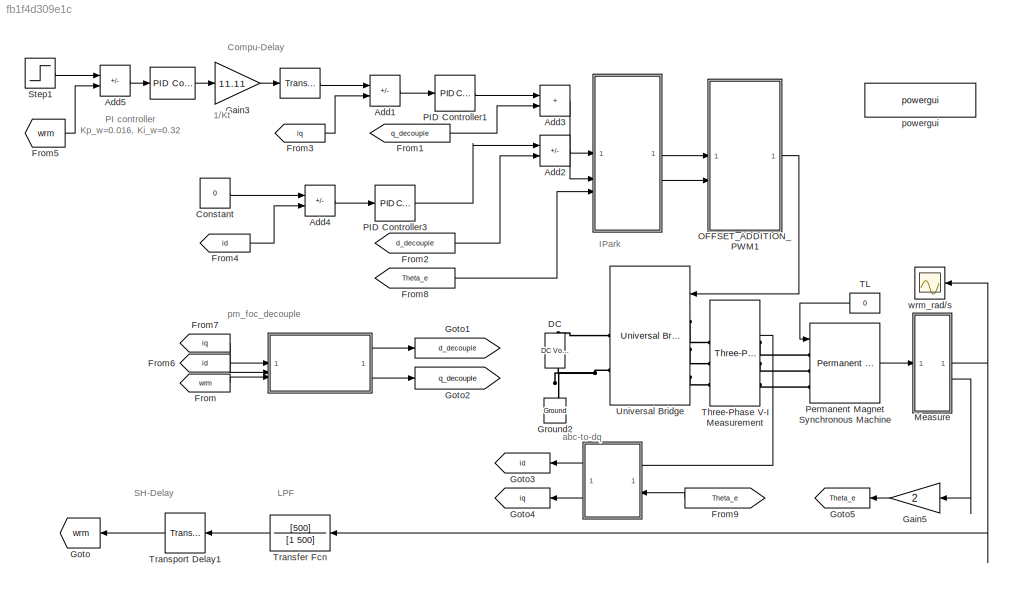
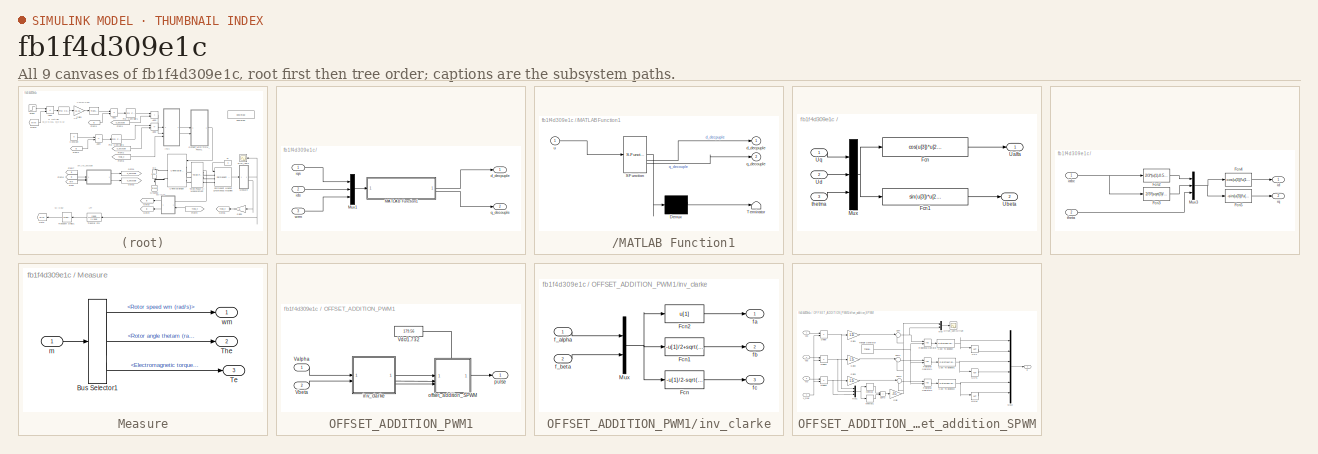
[diagram: thumbnail index - all 9 canvases of the model, root first then tree order]
MODEL slx_fb1f4d309e1c
KIND model
CONFIG AbsTol = auto
CONFIG EnableMultiTasking = on
CONFIG FixedStep = 1e-6
CONFIG MaxStep = auto
CONFIG MinStep = auto
CONFIG RelTol = 1e-3
CONFIG SampleTimeConstraint = Unconstrained
CONFIG SolverName = ode3
CONFIG StartTime = 0.0
CONFIG StopTime = 0.2
BLOCK [TransportDelay]   
  DelayTime = 1/4000
BLOCK [Reference]      REF=slpidlib/PID Controller
  LibrarySourceBlock = simulink/Continuous/PID Controller
  NameLocation = top
  SourceBlock = slpidlib/PID Controller
  SourceType = PID 1dof
BLOCK [SubSystem]     
BLOCK [SubSystem]      
BLOCK [SubSystem]       
  NameLocation = top
BLOCK [Fcn]       /Fcn2
  Expr = 2/3*(u(1)-0.5*u(2)-0.5*u(3))
BLOCK [Fcn]       /Fcn3
  Expr = 2/3*(sqrt(3)/2*u(2)-sqrt(3)/2*u(3))
BLOCK [Fcn]       /Fcn4
  Expr = cos(u(3))*u(1)+sin(u(3))*u(2)
BLOCK [Fcn]       /Fcn5
  Expr = -sin(u(3))*u(1)+cos(u(3))*u(2)
BLOCK [Mux]       /Mux3
  DisplayOption = bar
  Inputs = 3
BLOCK [Inport]       /iabc
BLOCK [Outport]       /id
BLOCK [Outport]       /iq
  Port = 2
BLOCK [Inport]       /theta
  Port = 2
BLOCK [Fcn]      /Fcn
  Expr = cos(u[3])*u[2]-sin(u[3])*u[1]
BLOCK [Fcn]      /Fcn1
  Expr = sin(u[3])*u[2]+cos(u[3])*u[1]
BLOCK [Mux]      /Mux
  DisplayOption = bar
  Inputs = 3
BLOCK [Outport]      /Ualfa
BLOCK [Outport]      /Ubeta
  Port = 2
BLOCK [Inport]      /Ud
  Port = 2
BLOCK [Inport]      /Uq
BLOCK [Inport]      /thetma
  Port = 3
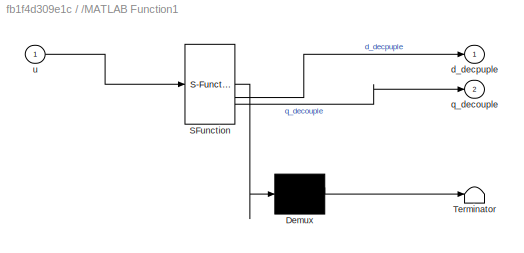
BLOCK [SubSystem]     /MATLAB Function1
  ErrorFcn = Stateflow.Translate.translate
  LibrarySourceBlock = simulink/User-Defined\nFunctions/MATLAB Function
  PermitHierarchicalResolution = ExplicitOnly
  SFBlockType = MATLAB Function
  TreatAsAtomicUnit = on
BLOCK [Demux]     /MATLAB Function1/ Demux 
  Outputs = 1
BLOCK [S-Function]     /MATLAB Function1/ SFunction 
  EnableBusSupport = on
  FunctionName = sf_sfun
  PortCounts = [1 3]
  SFcnIsStateOwnerBlock = off
  SFunctionDeploymentMode = off
  Tag = Stateflow S-Function 1
BLOCK [Terminator]     /MATLAB Function1/ Terminator 
BLOCK [Outport]     /MATLAB Function1/d_decpuple
BLOCK [Outport]     /MATLAB Function1/q_decouple
  Port = 2
BLOCK [Inport]     /MATLAB Function1/u
BLOCK [Mux]     /Mux1
  DisplayOption = bar
  Inputs = 3
BLOCK [Outport]     /d_decpuple
BLOCK [Inport]     /ids
  Port = 2
BLOCK [Inport]     /iqs
BLOCK [Outport]     /q_decouple
  Port = 2
BLOCK [Inport]     /wrm
  Port = 3
BLOCK [Sum] Add1
  IconShape = rectangular
  Inputs = +-
BLOCK [Sum] Add2
  IconShape = rectangular
  Inputs = +-
BLOCK [Sum] Add3
  IconShape = rectangular
BLOCK [Sum] Add4
  IconShape = rectangular
  Inputs = +-
BLOCK [Sum] Add5
  IconShape = rectangular
  Inputs = +-
BLOCK [Constant] Constant
  Value = 0
BLOCK [Reference] DC   REF=spsDCVoltageSourceLib/DC Voltage Source
  NameLocation = right
  SourceBlock = spsDCVoltageSourceLib/DC Voltage Source
  SourceType = DC Voltage Source
BLOCK [From] From
  GotoTag = wrm
BLOCK [From] From1
  GotoTag = q_decouple
BLOCK [From] From2
  GotoTag = d_decouple
BLOCK [From] From3
  GotoTag = iq
BLOCK [From] From4
  GotoTag = id
BLOCK [From] From5
  GotoTag = wrm
BLOCK [From] From6
  GotoTag = id
BLOCK [From] From7
  GotoTag = iq
BLOCK [From] From8
  GotoTag = Theta_e
BLOCK [From] From9
  GotoTag = Theta_e
  NameLocation = top
BLOCK [Gain] Gain3
  Gain = 11.11
BLOCK [Gain] Gain5
  Gain = 2
BLOCK [Goto] Goto
  GotoTag = wrm
  NameLocation = top
BLOCK [Goto] Goto1
  GotoTag = d_decouple
BLOCK [Goto] Goto2
  GotoTag = q_decouple
BLOCK [Goto] Goto3
  GotoTag = id
  NameLocation = top
BLOCK [Goto] Goto4
  GotoTag = iq
  NameLocation = top
BLOCK [Goto] Goto5
  GotoTag = Theta_e
  NameLocation = top
BLOCK [Reference] Ground2  REF=spsGroundLib/Ground
  NameLocation = right
  SourceBlock = spsGroundLib/Ground
  SourceType = Ground
BLOCK [SubSystem] Measure
BLOCK [BusSelector] Measure/Bus Selector1
  OutputSignals = Rotor speed wm (rad/s),Rotor angle thetam (rad),Electromagnetic torque Te (N*m)
BLOCK [Outport] Measure/Te
  Port = 3
BLOCK [Outport] Measure/The
  Port = 2
BLOCK [Inport] Measure/m
BLOCK [Outport] Measure/wm
BLOCK [SubSystem] OFFSET_ADDITION_PWM1
  NameLocation = top
BLOCK [Inport] OFFSET_ADDITION_PWM1/Valpha
BLOCK [Inport] OFFSET_ADDITION_PWM1/Vbeta
  Port = 2
BLOCK [Constant] OFFSET_ADDITION_PWM1/Vdc//1.732
  Value = 179.56
BLOCK [SubSystem] OFFSET_ADDITION_PWM1/inv_clarke
BLOCK [Fcn] OFFSET_ADDITION_PWM1/inv_clarke/Fcn
  Expr = -u[1]/2-sqrt(3)*u[2]/2
BLOCK [Fcn] OFFSET_ADDITION_PWM1/inv_clarke/Fcn1
  Expr = -u[1]/2+sqrt(3)*u[2]/2
BLOCK [Fcn] OFFSET_ADDITION_PWM1/inv_clarke/Fcn2
  Expr = u[1]
BLOCK [Mux] OFFSET_ADDITION_PWM1/inv_clarke/Mux
  DisplayOption = bar
  Inputs = 2
BLOCK [Inport] OFFSET_ADDITION_PWM1/inv_clarke/f_alpha
BLOCK [Inport] OFFSET_ADDITION_PWM1/inv_clarke/f_beta
  Port = 2
BLOCK [Outport] OFFSET_ADDITION_PWM1/inv_clarke/fa
BLOCK [Outport] OFFSET_ADDITION_PWM1/inv_clarke/fb
  Port = 2
BLOCK [Outport] OFFSET_ADDITION_PWM1/inv_clarke/fc
  Port = 3
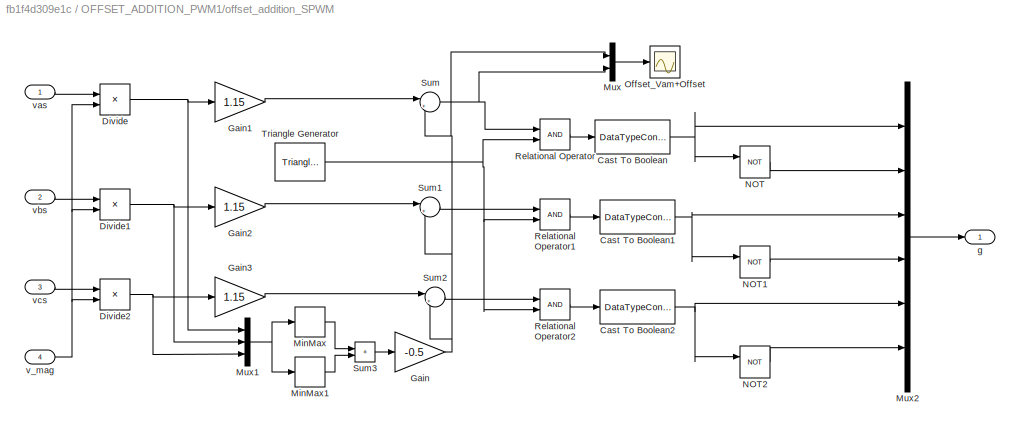
BLOCK [SubSystem] OFFSET_ADDITION_PWM1/offset_addition_SPWM
  PortSchema = {"entries":[{"content":{"sides":[{"content":{"connectorIds":["In1","In2","In3"]},"type":"ConnectorPlacement.EquallySpacedRectSide","uuid":"bd7bea3a-7add-49ec-8b52-f68dbb33beea"},{"content":{"connectorIds":["Out1"],"side":"RIGHT"},"type":"ConnectorPlacement.EquallySpacedRectSide","uuid":"aa5e81bc-27af-49d7-8d73-7e78ac021e04"},{"content":{"connectorIds":["In4"],"side":"TOP"},"type":"ConnectorPlaceme...<+257ch>
BLOCK [DataTypeConversion] OFFSET_ADDITION_PWM1/offset_addition_SPWM/Cast To Boolean
  OutDataTypeStr = boolean
  RndMeth = Floor
  SaturateOnIntegerOverflow = off
BLOCK [DataTypeConversion] OFFSET_ADDITION_PWM1/offset_addition_SPWM/Cast To Boolean1
  OutDataTypeStr = boolean
  RndMeth = Floor
  SaturateOnIntegerOverflow = off
BLOCK [DataTypeConversion] OFFSET_ADDITION_PWM1/offset_addition_SPWM/Cast To Boolean2
  OutDataTypeStr = boolean
  RndMeth = Floor
  SaturateOnIntegerOverflow = off
BLOCK [Product] OFFSET_ADDITION_PWM1/offset_addition_SPWM/Divide
  Inputs = */
BLOCK [Product] OFFSET_ADDITION_PWM1/offset_addition_SPWM/Divide1
  Inputs = */
BLOCK [Product] OFFSET_ADDITION_PWM1/offset_addition_SPWM/Divide2
  Inputs = */
BLOCK [Gain] OFFSET_ADDITION_PWM1/offset_addition_SPWM/Gain
  Gain = -0.5
BLOCK [Gain] OFFSET_ADDITION_PWM1/offset_addition_SPWM/Gain1
  Gain = 1.15
BLOCK [Gain] OFFSET_ADDITION_PWM1/offset_addition_SPWM/Gain2
  Gain = 1.15
BLOCK [Gain] OFFSET_ADDITION_PWM1/offset_addition_SPWM/Gain3
  Gain = 1.15
BLOCK [MinMax] OFFSET_ADDITION_PWM1/offset_addition_SPWM/MinMax
  Function = max
BLOCK [MinMax] OFFSET_ADDITION_PWM1/offset_addition_SPWM/MinMax1
BLOCK [Mux] OFFSET_ADDITION_PWM1/offset_addition_SPWM/Mux
  DisplayOption = bar
  Inputs = 2
BLOCK [Mux] OFFSET_ADDITION_PWM1/offset_addition_SPWM/Mux1
  DisplayOption = bar
  Inputs = 3
BLOCK [Mux] OFFSET_ADDITION_PWM1/offset_addition_SPWM/Mux2
  DisplayOption = bar
  Inputs = 6
BLOCK [Logic] OFFSET_ADDITION_PWM1/offset_addition_SPWM/NOT
  AllPortsSameDT = off
  IconShape = distinctive
  Operator = NOT
  OutDataTypeStr = boolean
BLOCK [Logic] OFFSET_ADDITION_PWM1/offset_addition_SPWM/NOT1
  AllPortsSameDT = off
  IconShape = distinctive
  Operator = NOT
  OutDataTypeStr = boolean
BLOCK [Logic] OFFSET_ADDITION_PWM1/offset_addition_SPWM/NOT2
  AllPortsSameDT = off
  IconShape = distinctive
  Operator = NOT
  OutDataTypeStr = boolean
BLOCK [Scope] OFFSET_ADDITION_PWM1/offset_addition_SPWM/Offset_Vam+Offset
  Floating = off
  NumInputPorts = 1
  ScopeSpecificationString = Simulink.scopes.TimeScopeBlockCfg('CurrentConfiguration', extmgr.ConfigurationSet(extmgr.Configuration('Core','General UI',true,'FigureColor',[1 1 1]),extmgr.Configuration('Core','Source UI',true),extmgr.Configuration('Sources','WiredSimulink',true,'DataLoggingVariableName','ScopeData1'),extmgr.Configuration('Visuals','Time Domain',true,'SerializedDisplays',{struct('MinYLimReal','-1.03834','MaxYLi...<+1562ch>
BLOCK [RelationalOperator] OFFSET_ADDITION_PWM1/offset_addition_SPWM/Relational Operator
  InputSameDT = off
  OutDataTypeStr = boolean
  RndMeth = Simplest
BLOCK [RelationalOperator] OFFSET_ADDITION_PWM1/offset_addition_SPWM/Relational Operator1
  InputSameDT = off
  OutDataTypeStr = boolean
  RndMeth = Simplest
BLOCK [RelationalOperator] OFFSET_ADDITION_PWM1/offset_addition_SPWM/Relational Operator2
  InputSameDT = off
  OutDataTypeStr = boolean
  RndMeth = Simplest
BLOCK [Sum] OFFSET_ADDITION_PWM1/offset_addition_SPWM/Sum
  Inputs = |++
BLOCK [Sum] OFFSET_ADDITION_PWM1/offset_addition_SPWM/Sum1
  Inputs = |++
BLOCK [Sum] OFFSET_ADDITION_PWM1/offset_addition_SPWM/Sum2
  Inputs = |++
BLOCK [Sum] OFFSET_ADDITION_PWM1/offset_addition_SPWM/Sum3
  IconShape = rectangular
BLOCK [Reference] OFFSET_ADDITION_PWM1/offset_addition_SPWM/Triangle Generator  REF=spsTriangleGeneratorLib/Triangle
Generator
  LibrarySourceBlock = sps_lib/Sources/Signal Generator Sources/Triangle\nGenerator
  SourceBlock = spsTriangleGeneratorLib/Triangle\nGenerator
  SourceType = Triangle Generator
BLOCK [Outport] OFFSET_ADDITION_PWM1/offset_addition_SPWM/g
BLOCK [Inport] OFFSET_ADDITION_PWM1/offset_addition_SPWM/v_mag
  Port = 4
BLOCK [Inport] OFFSET_ADDITION_PWM1/offset_addition_SPWM/vas
BLOCK [Inport] OFFSET_ADDITION_PWM1/offset_addition_SPWM/vbs
  Port = 2
BLOCK [Inport] OFFSET_ADDITION_PWM1/offset_addition_SPWM/vcs
  Port = 3
BLOCK [Outport] OFFSET_ADDITION_PWM1/pulse
BLOCK [Reference] PID Controller1  REF=slpidlib/PID Controller
  LibrarySourceBlock = simulink/Continuous/PID Controller
  SourceBlock = slpidlib/PID Controller
  SourceType = PID 1dof
BLOCK [Reference] PID Controller3  REF=slpidlib/PID Controller
  LibrarySourceBlock = simulink/Continuous/PID Controller
  SourceBlock = slpidlib/PID Controller
  SourceType = PID 1dof
BLOCK [Reference] Permanent Magnet Synchronous Machine   REF=spsPermanentMagnetSynchronousMachineLib/Permanent Magnet
Synchronous Machine
  SourceBlock = spsPermanentMagnetSynchronousMachineLib/Permanent Magnet\nSynchronous Machine
  SourceType = Permanent Magnet Synchronous Machine
BLOCK [Step] Step1
  After = 100
  SampleTime = 0
  Time = 0
BLOCK [Constant] TL
  NameLocation = top
  Value = 0
BLOCK [Reference] Three-Phase V-I Measurement  REF=spsThreePhaseVIMeasurementLib/Three-Phase
V-I Measurement
  LibrarySourceBlock = sps_lib/Sensors and Measurements/Three-Phase\nV-I Measurement
  SourceBlock = spsThreePhaseVIMeasurementLib/Three-Phase\nV-I Measurement
  SourceType = Three-Phase VI Measurement
BLOCK [TransferFcn] Transfer Fcn
  Denominator = [1 500]
  NameLocation = top
  Numerator = [500]
BLOCK [TransportDelay] Transport Delay1
  DelayTime = (1/4000)/2
  NameLocation = top
BLOCK [Reference] Universal Bridge   REF=spsUniversalBridgeLib/Universal Bridge
  NameLocation = top
  SourceBlock = spsUniversalBridgeLib/Universal Bridge
  SourceType = Universal Bridge
BLOCK [Reference] powergui  REF=spspowerguiLib/powergui
  Priority = 1
  SourceBlock = spspowerguiLib/powergui
  SourceType = PSB option menu block
BLOCK [Scope] wrm_rad//s
  Floating = off
  NameLocation = top
  NumInputPorts = 1
  ScopeSpecificationString = Simulink.scopes.TimeScopeBlockCfg('CurrentConfiguration', extmgr.ConfigurationSet(extmgr.Configuration('Core','General UI',true,'FigureColor',[1 1 1]),extmgr.Configuration('Core','Source UI',true),extmgr.Configuration('Sources','WiredSimulink',true,'DataLoggingVariableName','ScopeData1'),extmgr.Configuration('Visuals','Time Domain',true,'SerializedDisplays',{struct('MinYLimReal','-15.26281','MaxYL...<+1592ch>
ANNOTATION (root): 1/Kt
ANNOTATION (root): Compu-Delay
ANNOTATION (root): IPark
ANNOTATION (root): LPF
ANNOTATION (root): PI controller Kp_w=0.016, Ki_w=0.32
ANNOTATION (root): SH-Delay
ANNOTATION (root): abc-to-dq
ANNOTATION (root): pm_foc_decouple
LINE       /Fcn2:1 ->       /Mux3:1
LINE       /Fcn3:1 ->       /Mux3:2
LINE       /Fcn4:1 ->       /id:1
LINE       /Fcn5:1 ->       /iq:1
NET       /Mux3:1 ->       /Fcn4:1,       /Fcn5:1
NET       /iabc:1 ->       /Fcn2:1,       /Fcn3:1
LINE       /theta:1 ->       /Mux3:3
LINE       :1 -> Goto3:1
LINE       :2 -> Goto4:1
LINE      /Fcn1:1 ->      /Ubeta:1
LINE      /Fcn:1 ->      /Ualfa:1
NET      /Mux:1 ->      /Fcn1:1,      /Fcn:1
LINE      /Ud:1 ->      /Mux:2
LINE      /Uq:1 ->      /Mux:1
LINE      /thetma:1 ->      /Mux:3
LINE      :1 -> OFFSET_ADDITION_PWM1:1
LINE      :2 -> OFFSET_ADDITION_PWM1:2
LINE     /MATLAB Function1:1 ->     /d_decpuple:1
LINE     /MATLAB Function1:2 ->     /q_decouple:1
LINE     /Mux1:1 ->     /MATLAB Function1:1
LINE     /ids:1 ->     /Mux1:2
LINE     /iqs:1 ->     /Mux1:1
LINE     /wrm:1 ->     /Mux1:3
LINE     :1 -> Goto1:1
LINE     :2 -> Goto2:1
LINE    :1 -> Gain3:1
LINE   :1 -> Add1:1
LINE Add1:1 -> PID Controller1:1
LINE Add2:1 ->      :2
LINE Add3:1 ->      :1
LINE Add4:1 -> PID Controller3:1
LINE Add5:1 ->    :1
LINE Constant:1 -> Add4:1
LINE From1:1 -> Add3:2
LINE From2:1 -> Add2:2
LINE From3:1 -> Add1:2
LINE From4:1 -> Add4:2
LINE From5:1 -> Add5:2
LINE From6:1 ->     :2
LINE From7:1 ->     :1
LINE From8:1 ->      :3
LINE From9:1 ->       :2
LINE From:1 ->     :3
LINE Gain3:1 ->   :1
LINE Gain5:1 -> Goto5:1
LINE Measure/Bus Selector1:1 -> Measure/wm:1
LINE Measure/Bus Selector1:2 -> Measure/The:1
LINE Measure/Bus Selector1:3 -> Measure/Te:1
LINE Measure/m:1 -> Measure/Bus Selector1:1
NET Measure:1 -> Transfer Fcn:1, wrm_rad//s:1
LINE Measure:2 -> Gain5:1
LINE OFFSET_ADDITION_PWM1/Valpha:1 -> OFFSET_ADDITION_PWM1/inv_clarke:1
LINE OFFSET_ADDITION_PWM1/Vbeta:1 -> OFFSET_ADDITION_PWM1/inv_clarke:2
LINE OFFSET_ADDITION_PWM1/Vdc//1.732:1 -> OFFSET_ADDITION_PWM1/offset_addition_SPWM:4
LINE OFFSET_ADDITION_PWM1/inv_clarke/Fcn1:1 -> OFFSET_ADDITION_PWM1/inv_clarke/fb:1
LINE OFFSET_ADDITION_PWM1/inv_clarke/Fcn2:1 -> OFFSET_ADDITION_PWM1/inv_clarke/fa:1
LINE OFFSET_ADDITION_PWM1/inv_clarke/Fcn:1 -> OFFSET_ADDITION_PWM1/inv_clarke/fc:1
NET OFFSET_ADDITION_PWM1/inv_clarke/Mux:1 -> OFFSET_ADDITION_PWM1/inv_clarke/Fcn1:1, OFFSET_ADDITION_PWM1/inv_clarke/Fcn2:1, OFFSET_ADDITION_PWM1/inv_clarke/Fcn:1
LINE OFFSET_ADDITION_PWM1/inv_clarke/f_alpha:1 -> OFFSET_ADDITION_PWM1/inv_clarke/Mux:1
LINE OFFSET_ADDITION_PWM1/inv_clarke/f_beta:1 -> OFFSET_ADDITION_PWM1/inv_clarke/Mux:2
LINE OFFSET_ADDITION_PWM1/inv_clarke:1 -> OFFSET_ADDITION_PWM1/offset_addition_SPWM:1
LINE OFFSET_ADDITION_PWM1/inv_clarke:2 -> OFFSET_ADDITION_PWM1/offset_addition_SPWM:2
LINE OFFSET_ADDITION_PWM1/inv_clarke:3 -> OFFSET_ADDITION_PWM1/offset_addition_SPWM:3
NET OFFSET_ADDITION_PWM1/offset_addition_SPWM/Cast To Boolean1:1 -> OFFSET_ADDITION_PWM1/offset_addition_SPWM/Mux2:3, OFFSET_ADDITION_PWM1/offset_addition_SPWM/NOT1:1
NET OFFSET_ADDITION_PWM1/offset_addition_SPWM/Cast To Boolean2:1 -> OFFSET_ADDITION_PWM1/offset_addition_SPWM/Mux2:5, OFFSET_ADDITION_PWM1/offset_addition_SPWM/NOT2:1
NET OFFSET_ADDITION_PWM1/offset_addition_SPWM/Cast To Boolean:1 -> OFFSET_ADDITION_PWM1/offset_addition_SPWM/Mux2:1, OFFSET_ADDITION_PWM1/offset_addition_SPWM/NOT:1
NET OFFSET_ADDITION_PWM1/offset_addition_SPWM/Divide1:1 -> OFFSET_ADDITION_PWM1/offset_addition_SPWM/Gain2:1, OFFSET_ADDITION_PWM1/offset_addition_SPWM/Mux1:2
NET OFFSET_ADDITION_PWM1/offset_addition_SPWM/Divide2:1 -> OFFSET_ADDITION_PWM1/offset_addition_SPWM/Gain3:1, OFFSET_ADDITION_PWM1/offset_addition_SPWM/Mux1:3
NET OFFSET_ADDITION_PWM1/offset_addition_SPWM/Divide:1 -> OFFSET_ADDITION_PWM1/offset_addition_SPWM/Gain1:1, OFFSET_ADDITION_PWM1/offset_addition_SPWM/Mux1:1
LINE OFFSET_ADDITION_PWM1/offset_addition_SPWM/Gain1:1 -> OFFSET_ADDITION_PWM1/offset_addition_SPWM/Sum:1
LINE OFFSET_ADDITION_PWM1/offset_addition_SPWM/Gain2:1 -> OFFSET_ADDITION_PWM1/offset_addition_SPWM/Sum1:1
LINE OFFSET_ADDITION_PWM1/offset_addition_SPWM/Gain3:1 -> OFFSET_ADDITION_PWM1/offset_addition_SPWM/Sum2:1
NET OFFSET_ADDITION_PWM1/offset_addition_SPWM/Gain:1 -> OFFSET_ADDITION_PWM1/offset_addition_SPWM/Mux:1, OFFSET_ADDITION_PWM1/offset_addition_SPWM/Sum1:2, OFFSET_ADDITION_PWM1/offset_addition_SPWM/Sum2:2, OFFSET_ADDITION_PWM1/offset_addition_SPWM/Sum:2
LINE OFFSET_ADDITION_PWM1/offset_addition_SPWM/MinMax1:1 -> OFFSET_ADDITION_PWM1/offset_addition_SPWM/Sum3:2
LINE OFFSET_ADDITION_PWM1/offset_addition_SPWM/MinMax:1 -> OFFSET_ADDITION_PWM1/offset_addition_SPWM/Sum3:1
NET OFFSET_ADDITION_PWM1/offset_addition_SPWM/Mux1:1 -> OFFSET_ADDITION_PWM1/offset_addition_SPWM/MinMax1:1, OFFSET_ADDITION_PWM1/offset_addition_SPWM/MinMax:1
LINE OFFSET_ADDITION_PWM1/offset_addition_SPWM/Mux2:1 -> OFFSET_ADDITION_PWM1/offset_addition_SPWM/g:1
LINE OFFSET_ADDITION_PWM1/offset_addition_SPWM/Mux:1 -> OFFSET_ADDITION_PWM1/offset_addition_SPWM/Offset_Vam+Offset:1
LINE OFFSET_ADDITION_PWM1/offset_addition_SPWM/NOT1:1 -> OFFSET_ADDITION_PWM1/offset_addition_SPWM/Mux2:4
LINE OFFSET_ADDITION_PWM1/offset_addition_SPWM/NOT2:1 -> OFFSET_ADDITION_PWM1/offset_addition_SPWM/Mux2:6
LINE OFFSET_ADDITION_PWM1/offset_addition_SPWM/NOT:1 -> OFFSET_ADDITION_PWM1/offset_addition_SPWM/Mux2:2
LINE OFFSET_ADDITION_PWM1/offset_addition_SPWM/Relational Operator1:1 -> OFFSET_ADDITION_PWM1/offset_addition_SPWM/Cast To Boolean1:1
LINE OFFSET_ADDITION_PWM1/offset_addition_SPWM/Relational Operator2:1 -> OFFSET_ADDITION_PWM1/offset_addition_SPWM/Cast To Boolean2:1
LINE OFFSET_ADDITION_PWM1/offset_addition_SPWM/Relational Operator:1 -> OFFSET_ADDITION_PWM1/offset_addition_SPWM/Cast To Boolean:1
LINE OFFSET_ADDITION_PWM1/offset_addition_SPWM/Sum1:1 -> OFFSET_ADDITION_PWM1/offset_addition_SPWM/Relational Operator1:1
LINE OFFSET_ADDITION_PWM1/offset_addition_SPWM/Sum2:1 -> OFFSET_ADDITION_PWM1/offset_addition_SPWM/Relational Operator2:1
LINE OFFSET_ADDITION_PWM1/offset_addition_SPWM/Sum3:1 -> OFFSET_ADDITION_PWM1/offset_addition_SPWM/Gain:1
NET OFFSET_ADDITION_PWM1/offset_addition_SPWM/Sum:1 -> OFFSET_ADDITION_PWM1/offset_addition_SPWM/Mux:2, OFFSET_ADDITION_PWM1/offset_addition_SPWM/Relational Operator:1
NET OFFSET_ADDITION_PWM1/offset_addition_SPWM/Triangle Generator:1 -> OFFSET_ADDITION_PWM1/offset_addition_SPWM/Relational Operator1:2, OFFSET_ADDITION_PWM1/offset_addition_SPWM/Relational Operator2:2, OFFSET_ADDITION_PWM1/offset_addition_SPWM/Relational Operator:2
NET OFFSET_ADDITION_PWM1/offset_addition_SPWM/v_mag:1 -> OFFSET_ADDITION_PWM1/offset_addition_SPWM/Divide1:2, OFFSET_ADDITION_PWM1/offset_addition_SPWM/Divide2:2, OFFSET_ADDITION_PWM1/offset_addition_SPWM/Divide:2
LINE OFFSET_ADDITION_PWM1/offset_addition_SPWM/vas:1 -> OFFSET_ADDITION_PWM1/offset_addition_SPWM/Divide:1
LINE OFFSET_ADDITION_PWM1/offset_addition_SPWM/vbs:1 -> OFFSET_ADDITION_PWM1/offset_addition_SPWM/Divide1:1
LINE OFFSET_ADDITION_PWM1/offset_addition_SPWM/vcs:1 -> OFFSET_ADDITION_PWM1/offset_addition_SPWM/Divide2:1
LINE OFFSET_ADDITION_PWM1/offset_addition_SPWM:1 -> OFFSET_ADDITION_PWM1/pulse:1
LINE OFFSET_ADDITION_PWM1:1 -> Universal Bridge :1
LINE PID Controller1:1 -> Add3:1
LINE PID Controller3:1 -> Add2:1
LINE Permanent Magnet Synchronous Machine :1 -> Measure:1
LINE Step1:1 -> Add5:1
LINE TL:1 -> Permanent Magnet Synchronous Machine :1
LINE Three-Phase V-I Measurement:2 ->       :1
LINE Transfer Fcn:1 -> Transport Delay1:1
LINE Transport Delay1:1 -> Goto:1
PNET net1: DC :LConn1 -- Ground2:LConn1 -- Universal Bridge :RConn2
PLINE DC :RConn1 -- Universal Bridge :RConn1
PLINE Permanent Magnet Synchronous Machine :LConn1 -- Three-Phase V-I Measurement:RConn1
PLINE Permanent Magnet Synchronous Machine :LConn2 -- Three-Phase V-I Measurement:RConn2
PLINE Permanent Magnet Synchronous Machine :LConn3 -- Three-Phase V-I Measurement:RConn3
PLINE Three-Phase V-I Measurement:LConn1 -- Universal Bridge :LConn1
PLINE Three-Phase V-I Measurement:LConn2 -- Universal Bridge :LConn2
PLINE Three-Phase V-I Measurement:LConn3 -- Universal Bridge :LConn3
note: NET lines group one-source signal fan-out (src -> all destinations, sorted); 1:1 wires keep LINE; PNET lines group multi-terminal physical nets as a canonical sorted terminal list (undirected conserving connections); 2-terminal nets keep the pairwise PLINE form
CHART     /MATLAB Function1 states=1 transitions=1
  STATE_LABEL 'eML_blk_kernel()'
  STATE_LABEL 'SCRIPT:\nfunction [d_decpuple, q_decouple] = decouple(u)\n    Ld = 0.0057;\n    Lq = 0.0125;\n    Lamda_f = 0.03;\n    pole = 4;\n    wr = u(3)*pole/2;\n    d_decpuple = Ld*(wr*(Lq/Ld)*u(1));\n    q_decouple = Lq*(wr*(Ld*u(2)+Lamda_f)/Lq);'
CHART  states=0 transitions=0
